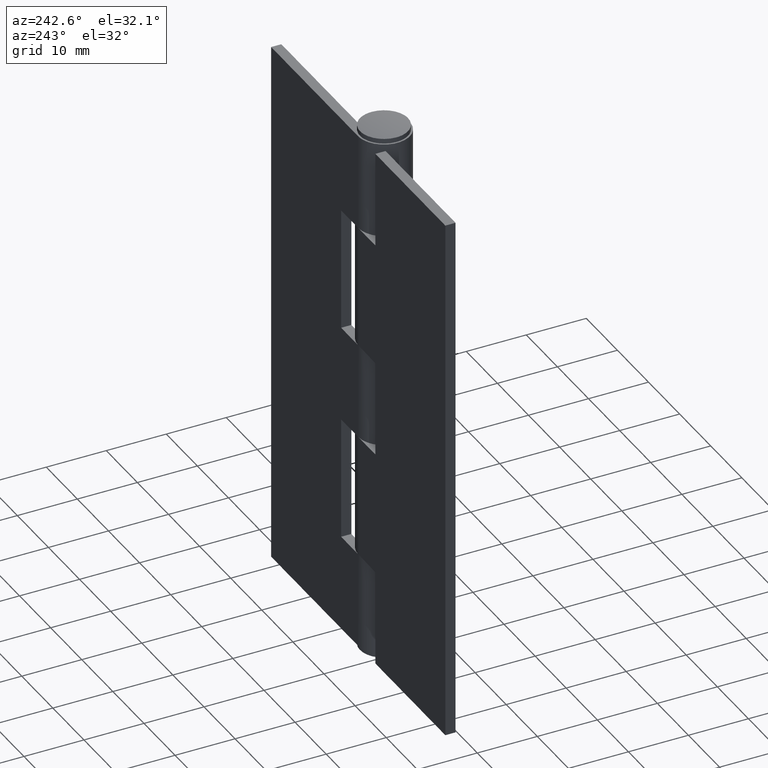
[diagram: clean part render]
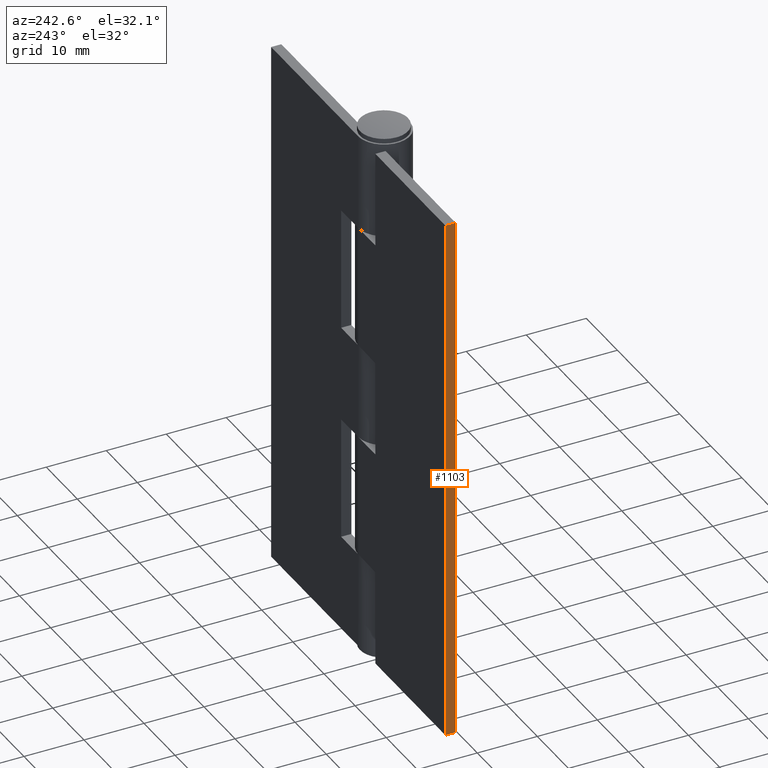
[diagram: same view with one face highlighted and labeled with its STEP entity id]
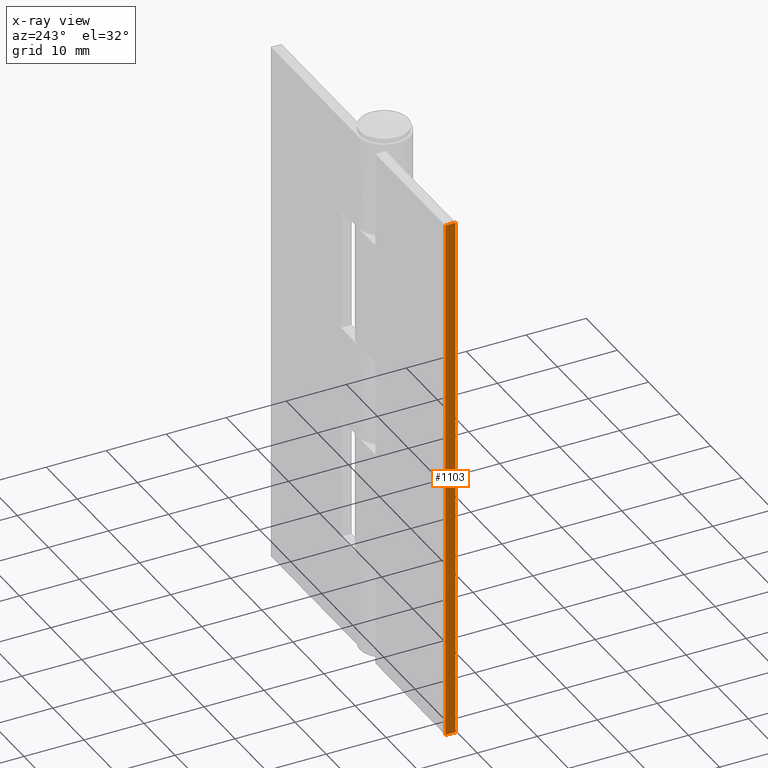
[diagram: x-ray of the same camera — body ghosted, the highlighted face saturated]
A machine part, auxiliary view. The second image highlights one B-rep face of the part: STEP entity #1103.
The next image is the same camera in x-ray: the body ghosted, the highlighted face saturated — about 0% of this face is hidden behind the body in this view.
In plain terms, the highlighted face is a freeform B-spline surface patch.
Its self-contained STEP definition (entity closure, byte-faithful):
#924=CARTESIAN_POINT('',(-28.0,2.599998000000000,0.0));
#925=VERTEX_POINT('',#924);
#931=CARTESIAN_POINT('',(-28.0,4.299999000000000,0.0));
#932=VERTEX_POINT('',#931);
#933=CARTESIAN_POINT('',(-28.0,4.299999000000000,0.0));
#934=CARTESIAN_POINT('',(-28.0,2.599998000000000,0.0));
#935=QUASI_UNIFORM_CURVE('',1,(#933,#934),.UNSPECIFIED.,.F.,.U.);
#936=EDGE_CURVE('',#932,#925,#935,.T.);
#951=CARTESIAN_POINT('',(-28.0,2.599998000000000,89.0));
#952=VERTEX_POINT('',#951);
#959=CARTESIAN_POINT('',(-28.0,4.299999000000000,89.0));
#960=VERTEX_POINT('',#959);
#966=CARTESIAN_POINT('',(-28.0,4.299999000000000,89.0));
#967=CARTESIAN_POINT('',(-28.0,2.599998000000000,89.0));
#968=QUASI_UNIFORM_CURVE('',1,(#966,#967),.UNSPECIFIED.,.F.,.U.);
#969=EDGE_CURVE('',#960,#952,#968,.T.);
#1080=CARTESIAN_POINT('',(-28.0,2.599998000000000,89.0));
#1081=CARTESIAN_POINT('',(-28.0,2.599998000000000,0.0));
#1082=QUASI_UNIFORM_CURVE('',1,(#1080,#1081),.UNSPECIFIED.,.F.,.U.);
#1083=EDGE_CURVE('',#952,#925,#1082,.T.);
#1088=CARTESIAN_POINT('',(-28.0,2.515082953344932,93.445549827500756));
#1089=CARTESIAN_POINT('',(-28.0,2.515082953344932,-4.445552214666751));
#1090=CARTESIAN_POINT('',(-28.0,4.384914092252648,93.445549827500756));
#1091=CARTESIAN_POINT('',(-28.0,4.384914092252648,-4.445552214666751));
#1092=B_SPLINE_SURFACE_WITH_KNOTS('',1,1,((#1088,#1090),(#1089,#1091)),.UNSPECIFIED.,.F.,.F.,.U.,(2,2),(2,2),(0.0,97.891102042167503),(0.0,1.869831138907716),.UNSPECIFIED.);
#1093=ORIENTED_EDGE('',*,*,#936,.T.);
#1094=ORIENTED_EDGE('',*,*,#1083,.F.);
#1095=ORIENTED_EDGE('',*,*,#969,.F.);
#1096=CARTESIAN_POINT('',(-28.0,4.299999000000000,89.0));
#1097=CARTESIAN_POINT('',(-28.0,4.299999000000000,0.0));
#1098=QUASI_UNIFORM_CURVE('',1,(#1096,#1097),.UNSPECIFIED.,.F.,.U.);
#1099=EDGE_CURVE('',#960,#932,#1098,.T.);
#1100=ORIENTED_EDGE('',*,*,#1099,.T.);
#1101=EDGE_LOOP('',(#1093,#1094,#1095,#1100));
#1102=FACE_OUTER_BOUND('',#1101,.T.);
#1103=ADVANCED_FACE('',(#1102),#1092,.F.);